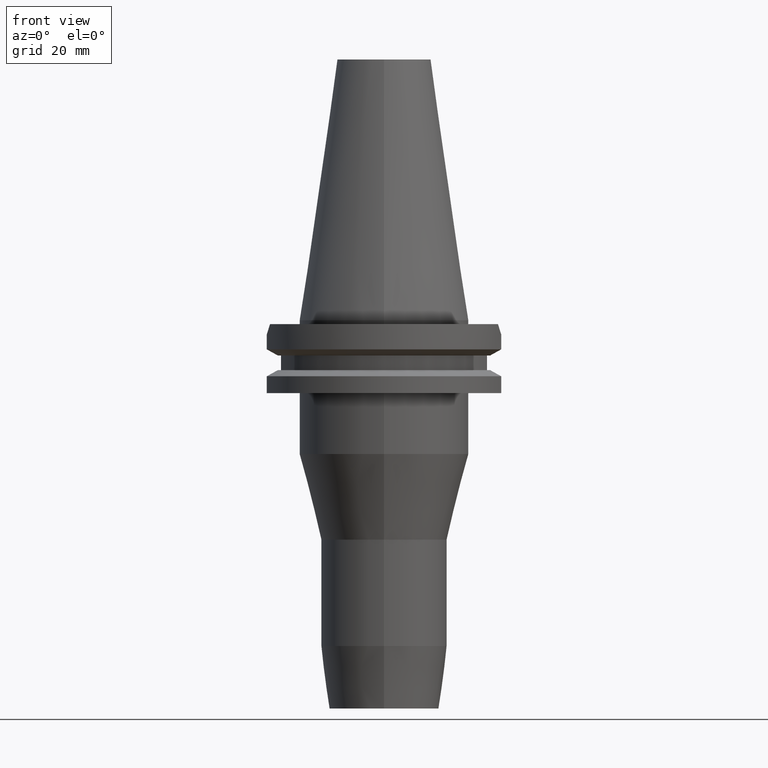
[diagram: clean part render]
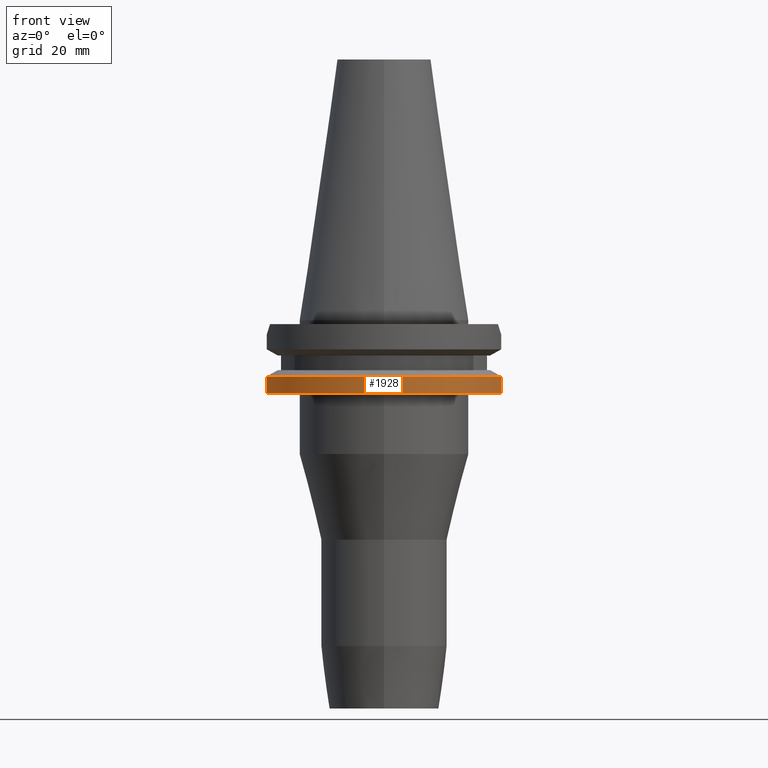
[diagram: same view with one face highlighted and labeled with its STEP entity id]
A machine part, front view. The second image highlights one B-rep face of the part: STEP entity #1928.
In plain terms, the highlighted cylindrical surface (partial cylindrical patch) has radius 31.75 mm, axis along (0, 0, -1).
Its self-contained STEP definition (entity closure, byte-faithful):
#235=CARTESIAN_POINT('',(0.E0,2.164471368983E-14,-1.905E1));
#236=DIRECTION('',(0.E0,0.E0,1.E0));
#237=DIRECTION('',(-9.661575315241E-1,-2.579527559055E-1,0.E0));
#238=AXIS2_PLACEMENT_3D('',#235,#236,#237);
#243=CARTESIAN_POINT('',(0.E0,2.164471368983E-14,-1.905E1));
#244=DIRECTION('',(0.E0,0.E0,1.E0));
#245=DIRECTION('',(0.E0,-1.E0,0.E0));
#246=AXIS2_PLACEMENT_3D('',#243,#244,#245);
#636=DIRECTION('',(3.682731677992E-8,1.379366260045E-7,-1.E0));
#637=VECTOR('',#636,4.396327811887E0);
#638=CARTESIAN_POINT('',(3.067550146399E1,-8.190000606415E0,-1.465367218811E1));
#639=LINE('',#638,#637);
#643=DIRECTION('',(-7.635537658565E-9,2.859820806319E-8,1.E0));
#644=VECTOR('',#643,4.396334354432E0);
#645=CARTESIAN_POINT('',(-3.067550162589E1,-8.19E0,-1.905E1));
#646=LINE('',#645,#644);
#792=CARTESIAN_POINT('',(0.E0,1.055026073065E-14,-1.465366676908E1));
#793=DIRECTION('',(0.E0,0.E0,-1.E0));
#794=DIRECTION('',(9.661575315241E-1,-2.579527559055E-1,0.E0));
#795=AXIS2_PLACEMENT_3D('',#792,#793,#794);
#800=CARTESIAN_POINT('',(0.E0,1.055026073065E-14,-1.465366676908E1));
#801=DIRECTION('',(0.E0,0.E0,-1.E0));
#802=DIRECTION('',(0.E0,-1.E0,0.E0));
#803=AXIS2_PLACEMENT_3D('',#800,#801,#802);
#1348=CARTESIAN_POINT('',(-3.067550162589E1,-8.19E0,-1.905E1));
#1349=VERTEX_POINT('',#1348);
#1350=CARTESIAN_POINT('',(1.540277123354E-14,-3.175E1,-1.905E1));
#1351=CARTESIAN_POINT('',(3.067550162589E1,-8.19E0,-1.905E1));
#1352=VERTEX_POINT('',#1350);
#1353=VERTEX_POINT('',#1351);
#1362=CARTESIAN_POINT('',(3.067550146399E1,-8.190000606415E0,
-1.465367218811E1));
#1363=VERTEX_POINT('',#1362);
#1374=CARTESIAN_POINT('',(-3.067550165946E1,-8.189999874273E0,
-1.465366564557E1));
#1375=VERTEX_POINT('',#1374);
#1376=CARTESIAN_POINT('',(0.E0,-3.175E1,-1.465366676908E1));
#1377=VERTEX_POINT('',#1376);
#1912=CARTESIAN_POINT('',(0.E0,2.164471368983E-14,7.67425E1));
#1913=DIRECTION('',(0.E0,0.E0,-1.E0));
#1914=DIRECTION('',(0.E0,-1.E0,0.E0));
#1915=AXIS2_PLACEMENT_3D('',#1912,#1913,#1914);
#1916=CYLINDRICAL_SURFACE('',#1915,3.175E1);
#1917=ORIENTED_EDGE('',*,*,#1894,.T.);
#1918=ORIENTED_EDGE('',*,*,#1613,.F.);
#1919=ORIENTED_EDGE('',*,*,#1611,.F.);
#1921=ORIENTED_EDGE('',*,*,#1920,.T.);
#1923=ORIENTED_EDGE('',*,*,#1922,.F.);
#1925=ORIENTED_EDGE('',*,*,#1924,.F.);
#1926=EDGE_LOOP('',(#1917,#1918,#1919,#1921,#1923,#1925));
#1927=FACE_OUTER_BOUND('',#1926,.F.);
#239=CIRCLE('',#238,3.175E1);
#247=CIRCLE('',#246,3.175E1);
#796=CIRCLE('',#795,3.175E1);
#804=CIRCLE('',#803,3.175E1);
#1611=EDGE_CURVE('',#1349,#1352,#239,.T.);
#1613=EDGE_CURVE('',#1352,#1353,#247,.T.);
#1894=EDGE_CURVE('',#1363,#1353,#639,.T.);
#1920=EDGE_CURVE('',#1349,#1375,#646,.T.);
#1922=EDGE_CURVE('',#1377,#1375,#804,.T.);
#1924=EDGE_CURVE('',#1363,#1377,#796,.T.);
#1928=ADVANCED_FACE('',(#1927),#1916,.T.);